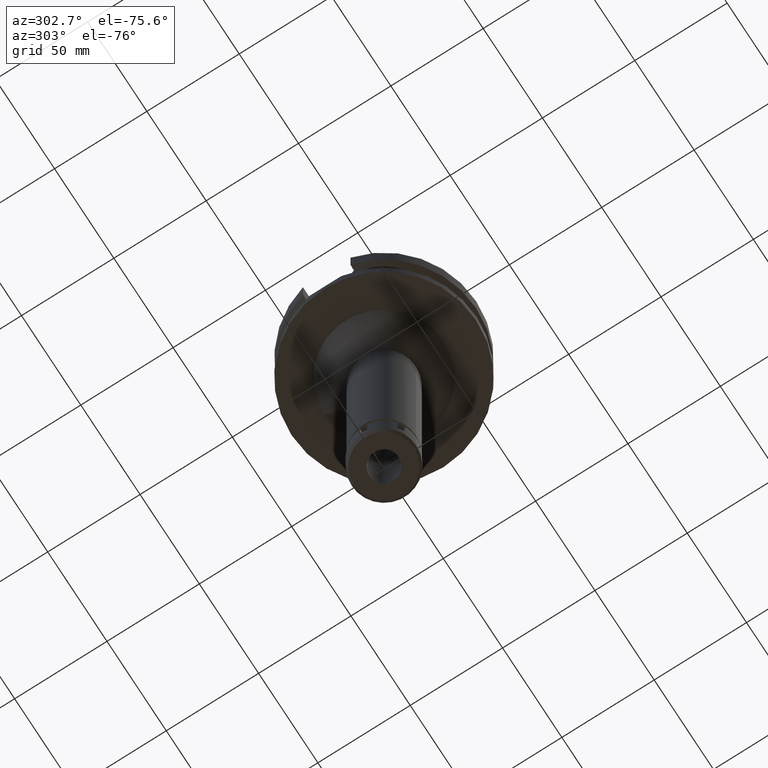
[diagram: clean part render]
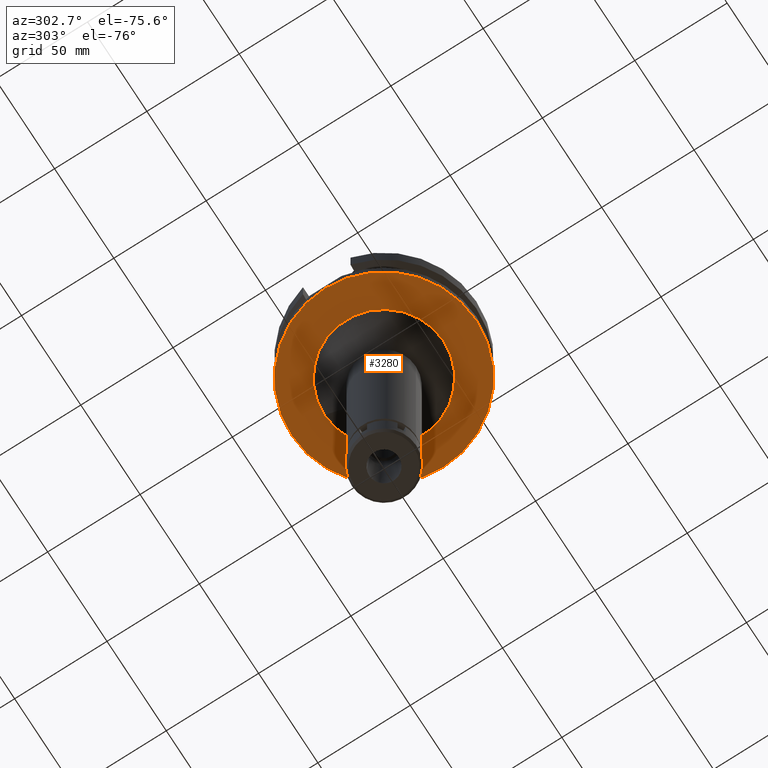
[diagram: same view with one face highlighted and labeled with its STEP entity id]
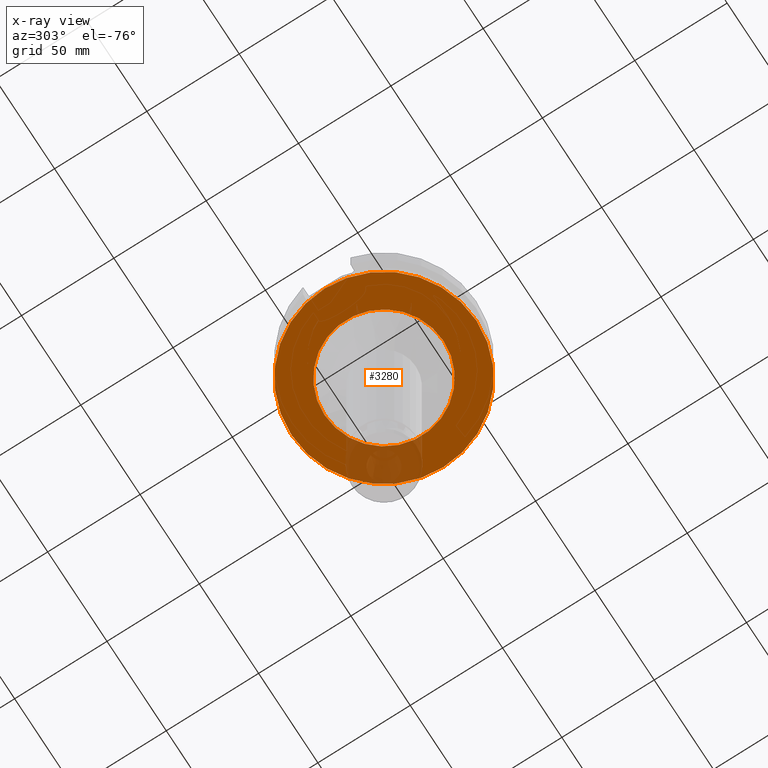
[diagram: x-ray of the same camera — body ghosted, the highlighted face saturated]
A machine part, auxiliary view. The second image highlights one B-rep face of the part: STEP entity #3280.
The next image is the same camera in x-ray: the body ghosted, the highlighted face saturated — about 14% of this face is hidden behind the body in this view.
In plain terms, the highlighted planar face has unit normal (0, 0, -1).
Its self-contained STEP definition (entity closure, byte-faithful):
#69 = FACE_OUTER_BOUND ( 'NONE', #72, .T. ) ;
#72 = EDGE_LOOP ( 'NONE', ( #1390, #2002 ) ) ;
#86 = DIRECTION ( 'NONE',  ( 0.0000000000000000000, 0.0000000000000000000, 1.000000000000000000 ) ) ;
#229 = CARTESIAN_POINT ( 'NONE',  ( 0.0000000000000000000, 0.0000000000000000000, -38.00000000000000000 ) ) ;
#280 = CIRCLE ( 'NONE', #2343, 32.25000000000000000 ) ;
#329 = CARTESIAN_POINT ( 'NONE',  ( 0.0000000000000000000, 0.0000000000000000000, -38.00000000000000000 ) ) ;
#564 = EDGE_CURVE ( 'NONE', #858, #2772, #2179, .T. ) ;
#617 = DIRECTION ( 'NONE',  ( 0.0000000000000000000, -1.000000000000000000, 0.0000000000000000000 ) ) ;
#858 = VERTEX_POINT ( 'NONE', #2726 ) ;
#1181 = CIRCLE ( 'NONE', #2494, 32.25000000000000000 ) ;
#1295 = DIRECTION ( 'NONE',  ( 0.0000000000000000000, 0.0000000000000000000, -1.000000000000000000 ) ) ;
#1390 = ORIENTED_EDGE ( 'NONE', *, *, #2954, .F. ) ;
#1537 = EDGE_CURVE ( 'NONE', #3512, #3387, #1181, .T. ) ;
#1548 = CARTESIAN_POINT ( 'NONE',  ( 0.0000000000000000000, 32.25000000000000000, -38.00000000000000000 ) ) ;
#1585 = AXIS2_PLACEMENT_3D ( 'NONE', #2536, #2281, #3672 ) ;
#1720 = AXIS2_PLACEMENT_3D ( 'NONE', #2044, #3203, #3491 ) ;
#1778 = CIRCLE ( 'NONE', #2430, 50.00000000000000000 ) ;
#2002 = ORIENTED_EDGE ( 'NONE', *, *, #564, .F. ) ;
#2044 = CARTESIAN_POINT ( 'NONE',  ( 0.0000000000000000000, 0.0000000000000000000, -38.00000000000000000 ) ) ;
#2179 = CIRCLE ( 'NONE', #1585, 50.00000000000000000 ) ;
#2228 = EDGE_CURVE ( 'NONE', #3387, #3512, #280, .T. ) ;
#2281 = DIRECTION ( 'NONE',  ( 0.0000000000000000000, 0.0000000000000000000, 1.000000000000000000 ) ) ;
#2313 = FACE_BOUND ( 'NONE', #2798, .T. ) ;
#2327 = DIRECTION ( 'NONE',  ( 0.0000000000000000000, 1.000000000000000000, 0.0000000000000000000 ) ) ;
#2343 = AXIS2_PLACEMENT_3D ( 'NONE', #229, #1295, #3054 ) ;
#2430 = AXIS2_PLACEMENT_3D ( 'NONE', #2941, #86, #2327 ) ;
#2494 = AXIS2_PLACEMENT_3D ( 'NONE', #329, #3472, #617 ) ;
#2536 = CARTESIAN_POINT ( 'NONE',  ( 0.0000000000000000000, 2.651237855473999832E-14, -38.00000000000000000 ) ) ;
#2726 = CARTESIAN_POINT ( 'NONE',  ( 0.0000000000000000000, -50.00000000000000000, -38.00000000000000000 ) ) ;
#2772 = VERTEX_POINT ( 'NONE', #3132 ) ;
#2788 = ORIENTED_EDGE ( 'NONE', *, *, #1537, .F. ) ;
#2798 = EDGE_LOOP ( 'NONE', ( #3450, #2788 ) ) ;
#2941 = CARTESIAN_POINT ( 'NONE',  ( 0.0000000000000000000, 2.651237855473999832E-14, -38.00000000000000000 ) ) ;
#2954 = EDGE_CURVE ( 'NONE', #2772, #858, #1778, .T. ) ;
#3054 = DIRECTION ( 'NONE',  ( 0.0000000000000000000, 1.000000000000000000, 0.0000000000000000000 ) ) ;
#3132 = CARTESIAN_POINT ( 'NONE',  ( 0.0000000000000000000, 50.00000000000000000, -38.00000000000000000 ) ) ;
#3203 = DIRECTION ( 'NONE',  ( 0.0000000000000000000, 0.0000000000000000000, -1.000000000000000000 ) ) ;
#3280 = ADVANCED_FACE ( 'NONE', ( #69, #2313 ), #3475, .T. ) ;
#3387 = VERTEX_POINT ( 'NONE', #1548 ) ;
#3450 = ORIENTED_EDGE ( 'NONE', *, *, #2228, .F. ) ;
#3472 = DIRECTION ( 'NONE',  ( 0.0000000000000000000, 0.0000000000000000000, -1.000000000000000000 ) ) ;
#3475 = PLANE ( 'NONE',  #1720 ) ;
#3491 = DIRECTION ( 'NONE',  ( 0.0000000000000000000, -1.000000000000000000, 0.0000000000000000000 ) ) ;
#3512 = VERTEX_POINT ( 'NONE', #3694 ) ;
#3672 = DIRECTION ( 'NONE',  ( 0.0000000000000000000, -1.000000000000000000, 0.0000000000000000000 ) ) ;
#3694 = CARTESIAN_POINT ( 'NONE',  ( 0.0000000000000000000, -32.25000000000000000, -38.00000000000000000 ) ) ;